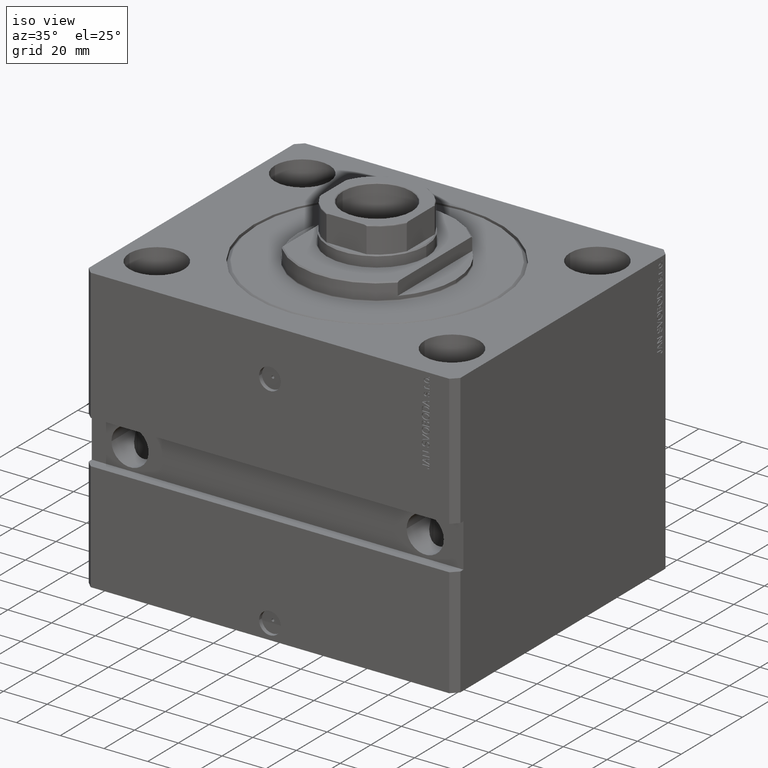
[diagram: clean part render]
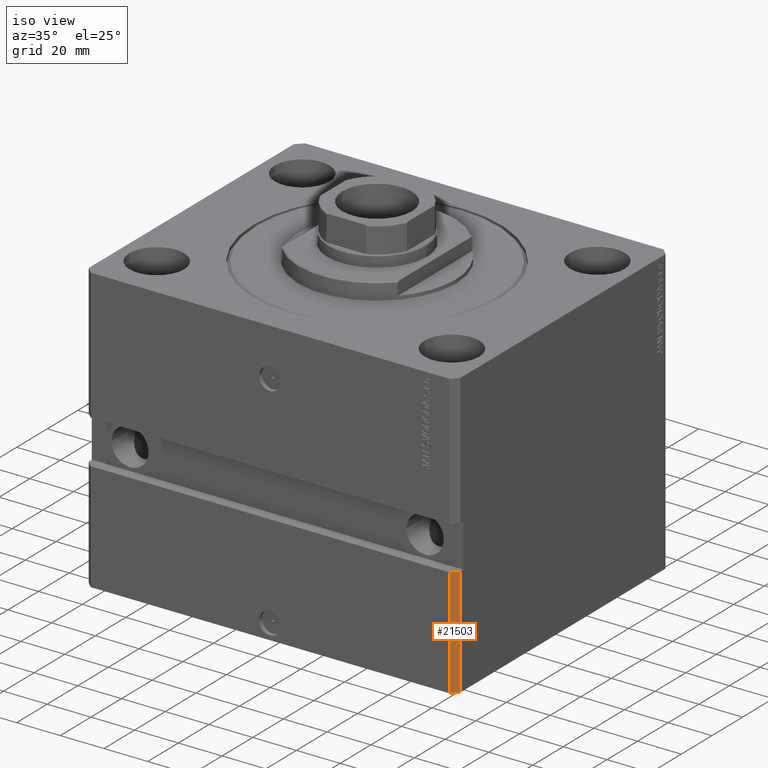
[diagram: same view with one face highlighted and labeled with its STEP entity id]
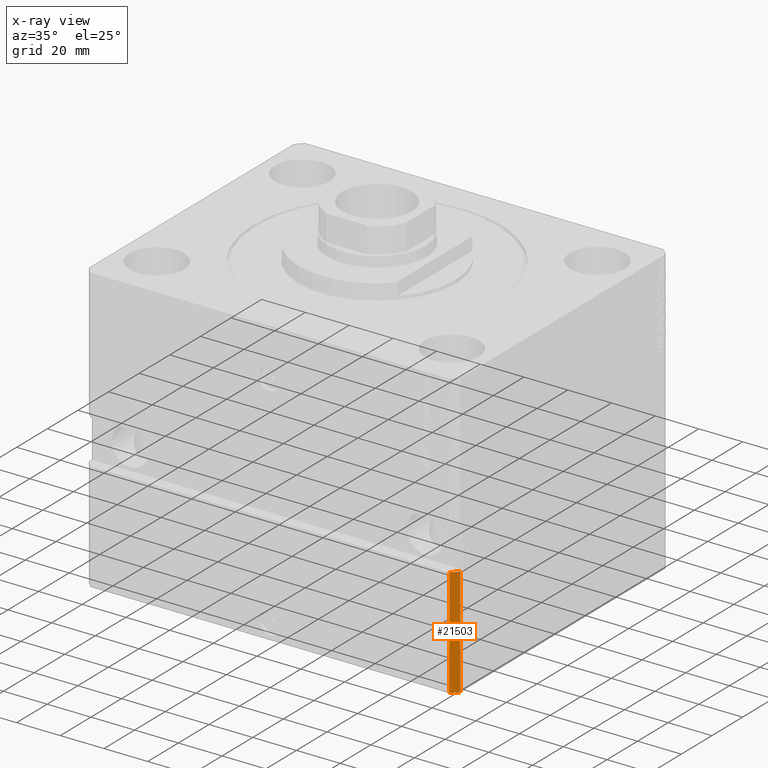
[diagram: x-ray of the same camera — body ghosted, the highlighted face saturated]
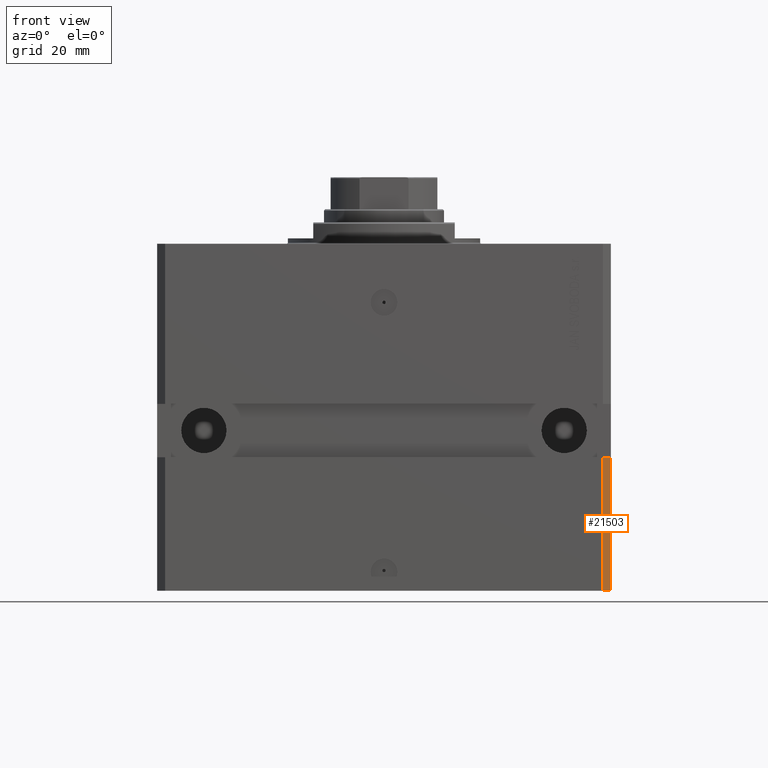
[diagram: same view with one face highlighted and labeled with its STEP entity id]
A machine part, iso view. The second image highlights one B-rep face of the part: STEP entity #21503.
The next image is the same camera in x-ray: the body ghosted, the highlighted face saturated — about 0% of this face is hidden behind the body in this view.
A second angle (front view) of the same face is appended — the face is thin or edge-on in the first view.
In plain terms, the highlighted planar face has unit normal (0.7071, -0.7071, 0).
Its self-contained STEP definition (entity closure, byte-faithful):
#4043 = PLANE ( 'NONE',  #46850 ) ;
#4084 = EDGE_CURVE ( 'NONE', #25097, #39063, #10840, .T. ) ;
#4382 = VECTOR ( 'NONE', #41980, 1000.000000000000000 ) ;
#5172 = CARTESIAN_POINT ( 'NONE',  ( 85.00000000000001421, -66.99999999999998579, -130.0000000000000000 ) ) ;
#10134 = DIRECTION ( 'NONE',  ( 0.7071067811865459074, 0.7071067811865491270, 0.000000000000000000 ) ) ;
#10840 = LINE ( 'NONE', #48313, #41713 ) ;
#11453 = CARTESIAN_POINT ( 'NONE',  ( 82.00000000000001421, -69.99999999999998579, -80.00000000000001421 ) ) ;
#14164 = CARTESIAN_POINT ( 'NONE',  ( 85.00000000000001421, -66.99999999999998579, -130.0000000000000000 ) ) ;
#14264 = VECTOR ( 'NONE', #10134, 1000.000000000000000 ) ;
#16271 = CARTESIAN_POINT ( 'NONE',  ( 82.00000000000001421, -70.00000000000000000, -130.0000000000000000 ) ) ;
#17549 = VECTOR ( 'NONE', #32995, 1000.000000000000000 ) ;
#18994 = CARTESIAN_POINT ( 'NONE',  ( 82.00000000000001421, -70.00000000000000000, -130.0000000000000000 ) ) ;
#20002 = VERTEX_POINT ( 'NONE', #5172 ) ;
#21503 = ADVANCED_FACE ( 'NONE', ( #37600 ), #4043, .T. ) ;
#22596 = DIRECTION ( 'NONE',  ( 0.7071067811865459074, 0.7071067811865491270, 0.000000000000000000 ) ) ;
#24701 = LINE ( 'NONE', #14164, #17549 ) ;
#25097 = VERTEX_POINT ( 'NONE', #11453 ) ;
#26573 = DIRECTION ( 'NONE',  ( 0.7071067811865459074, 0.7071067811865491270, 0.000000000000000000 ) ) ;
#28504 = LINE ( 'NONE', #43440, #14264 ) ;
#28999 = EDGE_LOOP ( 'NONE', ( #38092, #45198, #42060, #45178 ) ) ;
#30067 = VERTEX_POINT ( 'NONE', #38234 ) ;
#32995 = DIRECTION ( 'NONE',  ( 0.000000000000000000, 0.000000000000000000, 1.000000000000000000 ) ) ;
#34551 = EDGE_CURVE ( 'NONE', #30067, #20002, #28504, .T. ) ;
#37600 = FACE_OUTER_BOUND ( 'NONE', #28999, .T. ) ;
#38092 = ORIENTED_EDGE ( 'NONE', *, *, #4084, .F. ) ;
#38234 = CARTESIAN_POINT ( 'NONE',  ( 82.00000000000001421, -70.00000000000000000, -130.0000000000000000 ) ) ;
#38584 = CARTESIAN_POINT ( 'NONE',  ( 85.00000000000001421, -66.99999999999998579, -80.00000000000001421 ) ) ;
#39063 = VERTEX_POINT ( 'NONE', #38584 ) ;
#39650 = EDGE_CURVE ( 'NONE', #20002, #39063, #24701, .T. ) ;
#41713 = VECTOR ( 'NONE', #22596, 1000.000000000000000 ) ;
#41980 = DIRECTION ( 'NONE',  ( 0.000000000000000000, 0.000000000000000000, 1.000000000000000000 ) ) ;
#42060 = ORIENTED_EDGE ( 'NONE', *, *, #34551, .T. ) ;
#43440 = CARTESIAN_POINT ( 'NONE',  ( 82.00000000000001421, -70.00000000000000000, -130.0000000000000000 ) ) ;
#45178 = ORIENTED_EDGE ( 'NONE', *, *, #39650, .T. ) ;
#45184 = DIRECTION ( 'NONE',  ( 0.7071067811865491270, -0.7071067811865459074, 0.000000000000000000 ) ) ;
#45198 = ORIENTED_EDGE ( 'NONE', *, *, #47683, .F. ) ;
#45410 = LINE ( 'NONE', #16271, #4382 ) ;
#46850 = AXIS2_PLACEMENT_3D ( 'NONE', #18994, #45184, #26573 ) ;
#47683 = EDGE_CURVE ( 'NONE', #30067, #25097, #45410, .T. ) ;
#48313 = CARTESIAN_POINT ( 'NONE',  ( 82.00000000000001421, -70.00000000000000000, -80.00000000000001421 ) ) ;